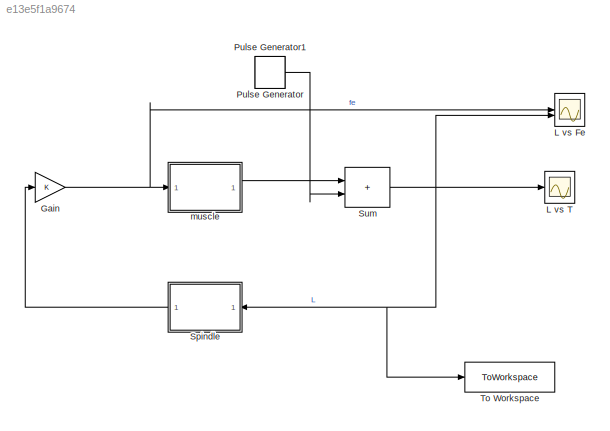
MODEL slx_e13e5f1a9674
KIND model
CONFIG AbsTol = auto
CONFIG EnableMultiTasking = off
CONFIG FixedStep = auto
CONFIG MaxStep = auto
CONFIG MinStep = auto
CONFIG RelTol = 1e-3
CONFIG SampleTimeConstraint = Unconstrained
CONFIG SolverName = VariableStepAuto
CONFIG StartTime = 0.0
CONFIG StopTime = 10.0
BLOCK [Gain] Gain
BLOCK [Scope] L vs Fe
  Floating = off
  NumInputPorts = 2
  ScopeSpecificationString = Simulink.scopes.TimeScopeBlockCfg('CurrentConfiguration', extmgr.ConfigurationSet(extmgr.Configuration('Core','General UI',true),extmgr.Configuration('Core','Source UI',true),extmgr.Configuration('Sources','WiredSimulink',true,'DataLoggingVariableName','ScopeData1'),extmgr.Configuration('Visuals','Time Domain',true,'SerializedDisplays',{struct('MinYLimReal','0.39761','MaxYLimReal','1.09897','YLabe...<+1452ch>
BLOCK [Scope] L vs T
  Floating = off
  NumInputPorts = 1
  ScopeSpecificationString = Simulink.scopes.TimeScopeBlockCfg('CurrentConfiguration', extmgr.ConfigurationSet(extmgr.Configuration('Core','General UI',true),extmgr.Configuration('Core','Source UI',true),extmgr.Configuration('Sources','WiredSimulink',true),extmgr.Configuration('Visuals','Time Domain',true,'SerializedDisplays',{struct('MinYLimReal','0.5271','MaxYLimReal','1.08187','YLabelReal','','MinYLimMag','0.5271','MaxYLim...<+1404ch>
BLOCK [DiscretePulseGenerator] Pulse Generator
  Period = 15
  PulseType = Time based
  PulseWidth = 0.75
BLOCK [DiscretePulseGenerator] Pulse Generator1
  Period = 10
  PulseType = Time based
  PulseWidth = 5
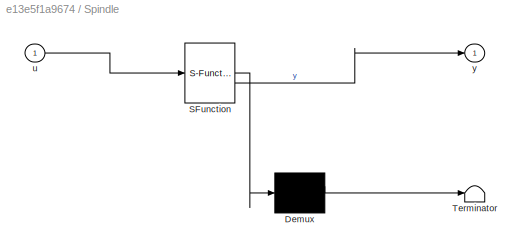
BLOCK [SubSystem] Spindle
  ErrorFcn = Stateflow.Translate.translate
  NameLocation = top
  PermitHierarchicalResolution = ExplicitOnly
  SFBlockType = MATLAB Function
  TreatAsAtomicUnit = on
BLOCK [Demux] Spindle/ Demux 
  Outputs = 1
BLOCK [S-Function] Spindle/ SFunction 
  EnableBusSupport = on
  FunctionName = sf_sfun
  PortCounts = [1 2]
  SFcnIsStateOwnerBlock = off
  SFunctionDeploymentMode = off
  Tag = Stateflow S-Function 1
BLOCK [Terminator] Spindle/ Terminator 
BLOCK [Inport] Spindle/u
BLOCK [Outport] Spindle/y
BLOCK [Sum] Sum
  IconShape = rectangular
  Inputs = |++
BLOCK [ToWorkspace] To Workspace
  FixptAsFi = on
  MaxDataPoints = inf
  SampleTime = -1
  SaveFormat = Timeseries
  VariableName = L
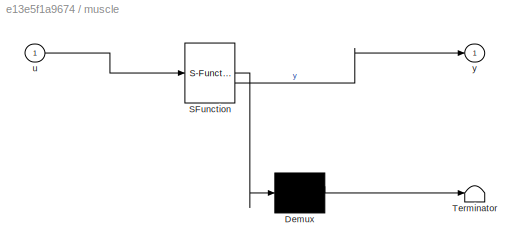
BLOCK [SubSystem] muscle
  ErrorFcn = Stateflow.Translate.translate
  PermitHierarchicalResolution = ExplicitOnly
  SFBlockType = MATLAB Function
  TreatAsAtomicUnit = on
BLOCK [Demux] muscle/ Demux 
  Outputs = 1
BLOCK [S-Function] muscle/ SFunction 
  EnableBusSupport = on
  FunctionName = sf_sfun
  PortCounts = [1 2]
  SFcnIsStateOwnerBlock = off
  SFunctionDeploymentMode = off
  Tag = Stateflow S-Function 2
BLOCK [Terminator] muscle/ Terminator 
BLOCK [Inport] muscle/u
BLOCK [Outport] muscle/y
NET Gain:1 -> L vs Fe:1, muscle:1
LINE Pulse Generator1:1 -> Sum:2
LINE Spindle:1 -> Gain:1
NET Sum:1 -> L vs Fe:2, L vs T:1, Spindle:1, To Workspace:1
LINE muscle:1 -> Sum:1
note: NET lines group one-source signal fan-out (src -> all destinations, sorted); 1:1 wires keep LINE
CHART muscle states=1 transitions=1
  STATE_LABEL 'eML_blk_kernel()'
  STATE_LABEL 'SCRIPT:\nfunction y = fcn(u)\n\ny = 1-u^5/(0.5^5+u^5);\n'
CHART Spindle states=1 transitions=1
  STATE_LABEL 'eML_blk_kernel()'
  STATE_LABEL 'SCRIPT:\nfunction y = fcn(u)\n\ny = (6/10)*u*exp(5*u/10);'
CHART  states=0 transitions=0
CHART  states=0 transitions=0
